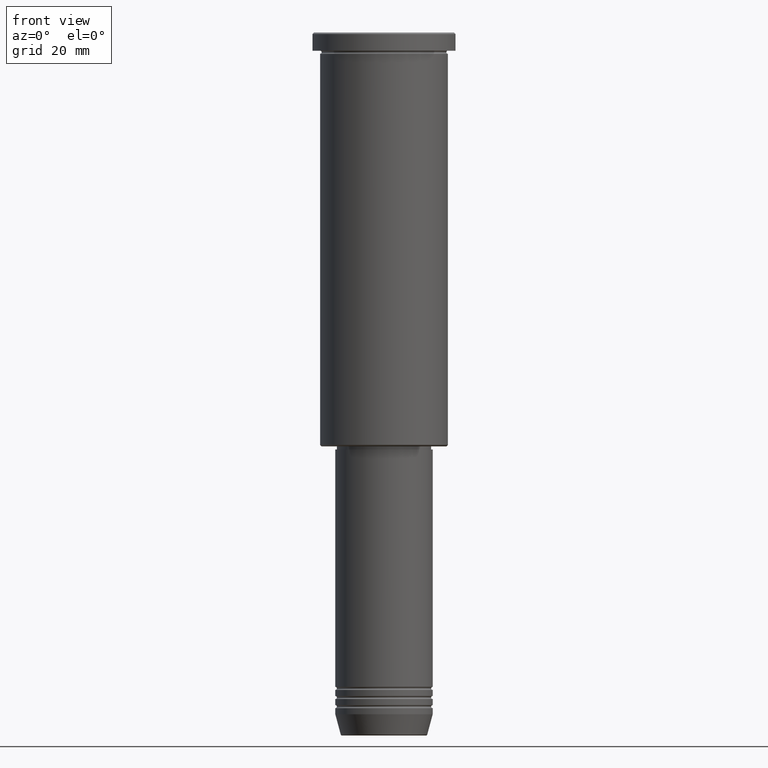
[diagram: clean part render]
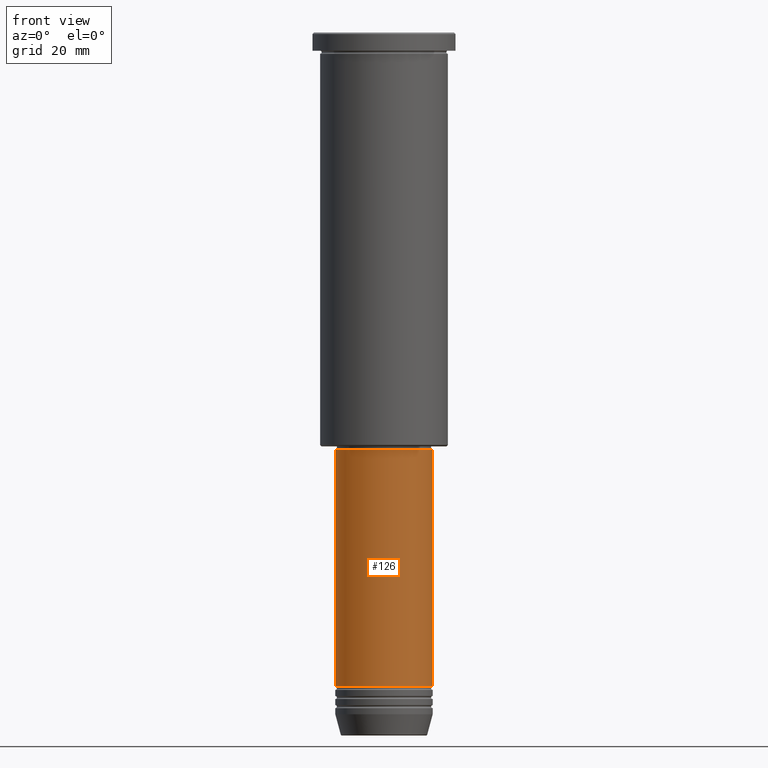
[diagram: same view with one face highlighted and labeled with its STEP entity id]
A machine part, front view. The second image highlights one B-rep face of the part: STEP entity #126.
In plain terms, the highlighted cylindrical surface (partial cylindrical patch) has radius 16 mm, axis along (-0, -0, 1).
Its self-contained STEP definition (entity closure, byte-faithful):
#36 = VERTEX_POINT ( 'NONE', #297 ) ;
#94 = EDGE_CURVE ( 'NONE', #206, #36, #375, .T. ) ;
#126 = ADVANCED_FACE ( 'NONE', ( #893 ), #179, .T. ) ;
#137 = CARTESIAN_POINT ( 'NONE',  ( 0.000000000000000000, 0.000000000000000000, -137.0000000000000000 ) ) ;
#179 = CYLINDRICAL_SURFACE ( 'NONE', #531, 16.00000000000000000 ) ;
#185 = DIRECTION ( 'NONE',  ( 1.000000000000000000, 0.000000000000000000, 0.000000000000000000 ) ) ;
#195 = VECTOR ( 'NONE', #205, 1000.000000000000000 ) ;
#201 = CARTESIAN_POINT ( 'NONE',  ( -16.00000000000000000, 1.959434878635765131E-15, -137.0000000000000000 ) ) ;
#203 = DIRECTION ( 'NONE',  ( -0.000000000000000000, -0.000000000000000000, 1.000000000000000000 ) ) ;
#205 = DIRECTION ( 'NONE',  ( -0.000000000000000000, -0.000000000000000000, 1.000000000000000000 ) ) ;
#206 = VERTEX_POINT ( 'NONE', #987 ) ;
#254 = CARTESIAN_POINT ( 'NONE',  ( 0.000000000000000000, 0.000000000000000000, -214.9999999999999716 ) ) ;
#297 = CARTESIAN_POINT ( 'NONE',  ( 16.00000000000000000, 0.000000000000000000, -214.9999999999999716 ) ) ;
#375 = CIRCLE ( 'NONE', #718, 16.00000000000000000 ) ;
#404 = VERTEX_POINT ( 'NONE', #201 ) ;
#426 = ORIENTED_EDGE ( 'NONE', *, *, #94, .T. ) ;
#471 = LINE ( 'NONE', #656, #195 ) ;
#481 = EDGE_CURVE ( 'NONE', #206, #404, #742, .T. ) ;
#503 = EDGE_LOOP ( 'NONE', ( #704, #426, #947, #1162 ) ) ;
#531 = AXIS2_PLACEMENT_3D ( 'NONE', #814, #540, #618 ) ;
#540 = DIRECTION ( 'NONE',  ( -0.000000000000000000, -0.000000000000000000, 1.000000000000000000 ) ) ;
#591 = EDGE_CURVE ( 'NONE', #36, #731, #471, .T. ) ;
#613 = CIRCLE ( 'NONE', #1077, 16.00000000000000000 ) ;
#618 = DIRECTION ( 'NONE',  ( 1.000000000000000000, 0.000000000000000000, 0.000000000000000000 ) ) ;
#656 = CARTESIAN_POINT ( 'NONE',  ( 16.00000000000000000, 0.000000000000000000, 0.000000000000000000 ) ) ;
#690 = DIRECTION ( 'NONE',  ( 1.000000000000000000, 0.000000000000000000, 0.000000000000000000 ) ) ;
#701 = CARTESIAN_POINT ( 'NONE',  ( 16.00000000000000000, 0.000000000000000000, -137.0000000000000000 ) ) ;
#704 = ORIENTED_EDGE ( 'NONE', *, *, #481, .F. ) ;
#718 = AXIS2_PLACEMENT_3D ( 'NONE', #254, #1177, #185 ) ;
#731 = VERTEX_POINT ( 'NONE', #701 ) ;
#742 = LINE ( 'NONE', #1022, #935 ) ;
#814 = CARTESIAN_POINT ( 'NONE',  ( 0.000000000000000000, 0.000000000000000000, 0.000000000000000000 ) ) ;
#893 = FACE_OUTER_BOUND ( 'NONE', #503, .T. ) ;
#935 = VECTOR ( 'NONE', #203, 1000.000000000000000 ) ;
#947 = ORIENTED_EDGE ( 'NONE', *, *, #591, .T. ) ;
#958 = DIRECTION ( 'NONE',  ( -0.000000000000000000, -0.000000000000000000, 1.000000000000000000 ) ) ;
#987 = CARTESIAN_POINT ( 'NONE',  ( -16.00000000000000000, 1.959434878635765131E-15, -214.9999999999999716 ) ) ;
#1022 = CARTESIAN_POINT ( 'NONE',  ( -16.00000000000000000, 1.959434878635765131E-15, 0.000000000000000000 ) ) ;
#1077 = AXIS2_PLACEMENT_3D ( 'NONE', #137, #958, #690 ) ;
#1159 = EDGE_CURVE ( 'NONE', #404, #731, #613, .T. ) ;
#1162 = ORIENTED_EDGE ( 'NONE', *, *, #1159, .F. ) ;
#1177 = DIRECTION ( 'NONE',  ( -0.000000000000000000, -0.000000000000000000, 1.000000000000000000 ) ) ;